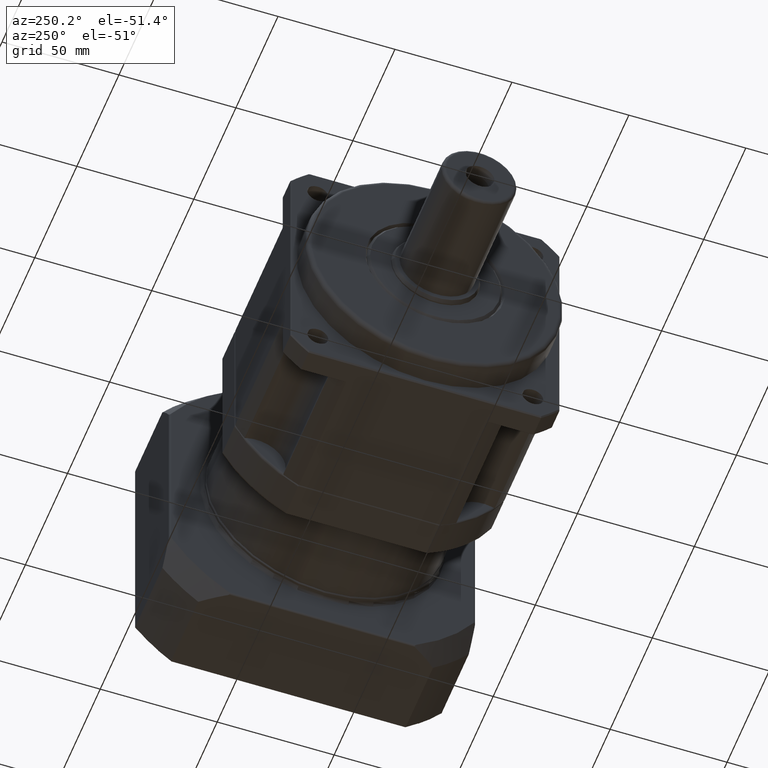
[diagram: clean part render]
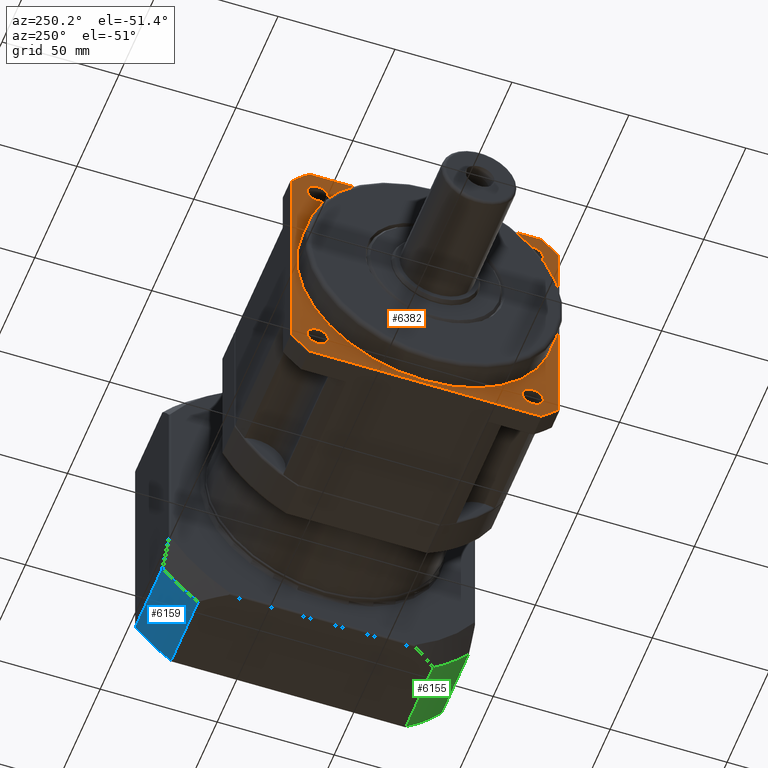
[diagram: same view with three faces highlighted in distinct colors, each labeled with its STEP entity id]
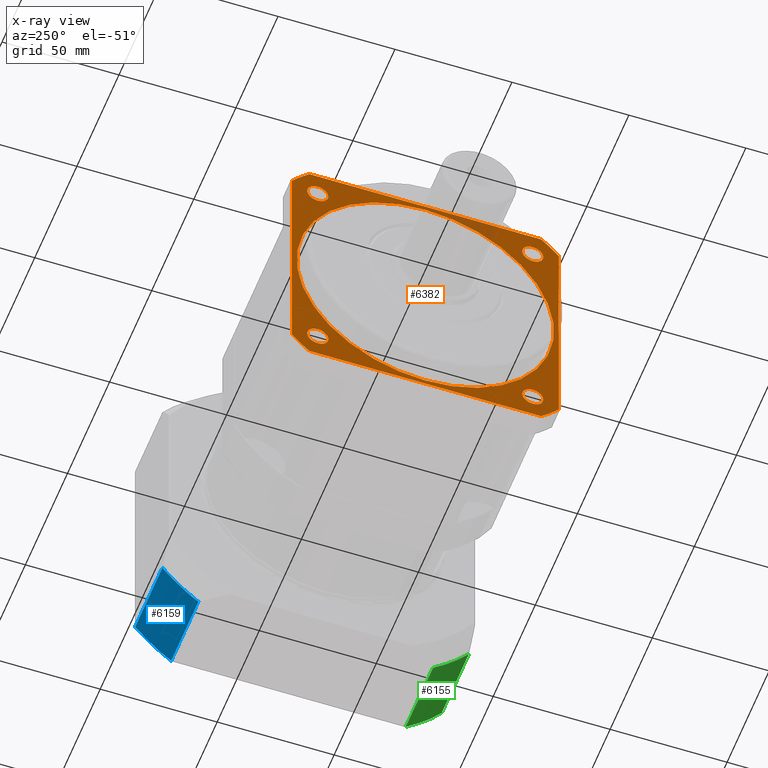
[diagram: x-ray of the same camera — body ghosted, the three highlighted faces saturated]
A machine part, auxiliary view with three faces highlighted in distinct colors.
The next image is the same camera in x-ray (body ghosted, the three faces saturated) — at least one of them is partly hidden behind the body in this view.
Their STEP definitions:

[orange] entity #6382 — the highlighted planar face has unit normal (-1, -0, 0).
#319=LINE('',#10964,#626);
#321=LINE('',#10987,#628);
#323=LINE('',#11005,#630);
#326=LINE('',#11025,#633);
#626=VECTOR('',#8496,99.0201999594022);
#628=VECTOR('',#8506,99.0201999594023);
#630=VECTOR('',#8516,99.0201999594022);
#633=VECTOR('',#8527,99.0201999594022);
#1020=PLANE('',#7074);
#1226=FACE_BOUND('',#2149,.T.);
#1227=FACE_BOUND('',#2150,.T.);
#1228=FACE_BOUND('',#2151,.T.);
#1229=FACE_BOUND('',#2152,.T.);
#1230=FACE_BOUND('',#2153,.T.);
#1580=FACE_OUTER_BOUND('',#2148,.T.);
#2148=EDGE_LOOP('',(#5052,#5053,#5054,#5055,#5056,#5057,#5058,#5059));
#2149=EDGE_LOOP('',(#5060));
#2150=EDGE_LOOP('',(#5061));
#2151=EDGE_LOOP('',(#5062));
#2152=EDGE_LOOP('',(#5063));
#2153=EDGE_LOOP('',(#5064));
#2584=CIRCLE('',#7004,55.);
#2609=CIRCLE('',#7056,75.5);
#2611=CIRCLE('',#7060,75.5);
#2614=CIRCLE('',#7065,75.5);
#2616=CIRCLE('',#7069,75.5);
#2617=CIRCLE('',#7075,4.5);
#2618=CIRCLE('',#7076,4.5);
#2619=CIRCLE('',#7077,4.5);
#2620=CIRCLE('',#7078,4.5);
#3055=VERTEX_POINT('',#10818);
#3100=VERTEX_POINT('',#10962);
#3101=VERTEX_POINT('',#10963);
#3104=VERTEX_POINT('',#10977);
#3106=VERTEX_POINT('',#10986);
#3108=VERTEX_POINT('',#10995);
#3110=VERTEX_POINT('',#11004);
#3113=VERTEX_POINT('',#11015);
#3115=VERTEX_POINT('',#11024);
#3116=VERTEX_POINT('',#11047);
#3117=VERTEX_POINT('',#11049);
#3118=VERTEX_POINT('',#11051);
#3119=VERTEX_POINT('',#11053);
#3735=EDGE_CURVE('',#3055,#3055,#2584,.T.);
#3792=EDGE_CURVE('',#3100,#3101,#319,.T.);
#3796=EDGE_CURVE('',#3101,#3104,#2609,.T.);
#3799=EDGE_CURVE('',#3104,#3106,#321,.T.);
#3802=EDGE_CURVE('',#3106,#3108,#2611,.T.);
#3805=EDGE_CURVE('',#3108,#3110,#323,.T.);
#3809=EDGE_CURVE('',#3110,#3113,#2614,.T.);
#3812=EDGE_CURVE('',#3113,#3115,#326,.T.);
#3815=EDGE_CURVE('',#3115,#3100,#2616,.T.);
#3825=EDGE_CURVE('',#3116,#3116,#2617,.T.);
#3826=EDGE_CURVE('',#3117,#3117,#2618,.T.);
#3827=EDGE_CURVE('',#3118,#3118,#2619,.T.);
#3828=EDGE_CURVE('',#3119,#3119,#2620,.T.);
#5052=ORIENTED_EDGE('',*,*,#3792,.F.);
#5053=ORIENTED_EDGE('',*,*,#3815,.F.);
#5054=ORIENTED_EDGE('',*,*,#3812,.F.);
#5055=ORIENTED_EDGE('',*,*,#3809,.F.);
#5056=ORIENTED_EDGE('',*,*,#3805,.F.);
#5057=ORIENTED_EDGE('',*,*,#3802,.F.);
#5058=ORIENTED_EDGE('',*,*,#3799,.F.);
#5059=ORIENTED_EDGE('',*,*,#3796,.F.);
#5060=ORIENTED_EDGE('',*,*,#3735,.T.);
#5061=ORIENTED_EDGE('',*,*,#3825,.T.);
#5062=ORIENTED_EDGE('',*,*,#3826,.T.);
#5063=ORIENTED_EDGE('',*,*,#3827,.T.);
#5064=ORIENTED_EDGE('',*,*,#3828,.T.);
#6382=ADVANCED_FACE('',(#1580,#1226,#1227,#1228,#1229,#1230),#1020,.T.);
#7004=AXIS2_PLACEMENT_3D('',#10819,#8378,#8379);
#7056=AXIS2_PLACEMENT_3D('',#10978,#8500,#8501);
#7060=AXIS2_PLACEMENT_3D('',#10996,#8510,#8511);
#7065=AXIS2_PLACEMENT_3D('',#11016,#8522,#8523);
#7069=AXIS2_PLACEMENT_3D('',#11032,#8532,#8533);
#7074=AXIS2_PLACEMENT_3D('',#11046,#8551,#8552);
#7075=AXIS2_PLACEMENT_3D('',#11048,#8553,#8554);
#7076=AXIS2_PLACEMENT_3D('',#11050,#8555,#8556);
#7077=AXIS2_PLACEMENT_3D('',#11052,#8557,#8558);
#7078=AXIS2_PLACEMENT_3D('',#11054,#8559,#8560);
#8378=DIRECTION('center_axis',(1.,6.1062266354384E-16,-1.15585299033076E-15));
#8379=DIRECTION('ref_axis',(-1.15585299033076E-15,-5.34294830600751E-16,
-1.));
#8496=DIRECTION('',(-6.1062266354384E-16,1.,-3.02596112418109E-16));
#8500=DIRECTION('center_axis',(1.,6.1062266354384E-16,-1.15585299033076E-15));
#8501=DIRECTION('ref_axis',(-1.15585299033076E-15,-5.34294830600751E-16,
-1.));
#8506=DIRECTION('',(1.15585299033076E-15,3.7982901847899E-16,1.));
#8510=DIRECTION('center_axis',(1.,6.1062266354384E-16,-1.15585299033076E-15));
#8511=DIRECTION('ref_axis',(1.15585299033076E-15,5.34294830600751E-16,1.));
#8516=DIRECTION('',(6.1062266354384E-16,-1.,4.5706192453987E-16));
#8522=DIRECTION('center_axis',(1.,6.1062266354384E-16,-1.15585299033076E-15));
#8523=DIRECTION('ref_axis',(1.15585299033076E-15,5.34294830600751E-16,1.));
#8527=DIRECTION('',(-1.15585299033076E-15,-5.34294830600751E-16,-1.));
#8532=DIRECTION('center_axis',(1.,6.1062266354384E-16,-1.15585299033076E-15));
#8533=DIRECTION('ref_axis',(-1.15585299033076E-15,-5.34294830600751E-16,
-1.));
#8551=DIRECTION('center_axis',(-1.,-6.1062266354384E-16,1.15585299033076E-15));
#8552=DIRECTION('ref_axis',(1.4210854715202E-15,0.,1.));
#8553=DIRECTION('center_axis',(1.,6.1062266354384E-16,-1.15585299033076E-15));
#8554=DIRECTION('ref_axis',(-1.15585299033076E-15,-5.34294830600751E-16,
-1.));
#8555=DIRECTION('center_axis',(1.,6.1062266354384E-16,-1.15585299033076E-15));
#8556=DIRECTION('ref_axis',(-6.1062266354384E-16,1.,-5.95527170558118E-16));
#8557=DIRECTION('center_axis',(1.,6.1062266354384E-16,-1.15585299033076E-15));
#8558=DIRECTION('ref_axis',(1.15585299033076E-15,6.56759510515486E-16,1.));
#8559=DIRECTION('center_axis',(1.,6.1062266354384E-16,-1.15585299033076E-15));
#8560=DIRECTION('ref_axis',(6.1062266354384E-16,-1.,7.17991850472853E-16));
#10818=CARTESIAN_POINT('',(-82.5513956068893,-123.244525766391,-49.9535040948));
#10819=CARTESIAN_POINT('Origin',(-82.5513956068893,-123.244525766391,-104.9535040948));
#10962=CARTESIAN_POINT('',(-82.5513956068894,-172.754625746092,-161.9535040948));
#10963=CARTESIAN_POINT('',(-82.5513956068894,-73.7344257866899,-161.9535040948));
#10964=CARTESIAN_POINT('',(-82.5513956068894,-94.4945257663911,-161.9535040948));
#10977=CARTESIAN_POINT('',(-82.5513956068894,-66.2445257663911,-154.463604074501));
#10978=CARTESIAN_POINT('Origin',(-82.5513956068893,-123.244525766391,-104.9535040948));
#10986=CARTESIAN_POINT('',(-82.5513956068893,-66.244525766391,-55.4434041150989));
#10987=CARTESIAN_POINT('',(-82.5513956068893,-66.244525766391,-76.2035040948));
#10995=CARTESIAN_POINT('',(-82.5513956068893,-73.7344257866899,-47.9535040948));
#10996=CARTESIAN_POINT('Origin',(-82.5513956068893,-123.244525766391,-104.9535040948));
#11004=CARTESIAN_POINT('',(-82.5513956068892,-172.754625746092,-47.9535040947999));
#11005=CARTESIAN_POINT('',(-82.5513956068893,-151.994525766391,-47.9535040948));
#11015=CARTESIAN_POINT('',(-82.5513956068892,-180.244525766391,-55.4434041150988));
#11016=CARTESIAN_POINT('Origin',(-82.5513956068893,-123.244525766391,-104.9535040948));
#11024=CARTESIAN_POINT('',(-82.5513956068893,-180.244525766391,-154.463604074501));
#11025=CARTESIAN_POINT('',(-82.5513956068893,-180.244525766391,-133.7035040948));
#11032=CARTESIAN_POINT('Origin',(-82.5513956068893,-123.244525766391,-104.9535040948));
#11046=CARTESIAN_POINT('Origin',(-82.5513956068893,-123.244525766391,-104.9535040948));
#11047=CARTESIAN_POINT('',(-82.5513956068893,-169.206466543517,-54.4915633176744));
#11048=CARTESIAN_POINT('Origin',(-82.5513956068893,-169.206466543517,-58.9915633176744));
#11049=CARTESIAN_POINT('',(-82.5513956068894,-173.706466543517,-150.915444871926));
#11050=CARTESIAN_POINT('Origin',(-82.5513956068894,-169.206466543517,-150.915444871926));
#11051=CARTESIAN_POINT('',(-82.5513956068894,-77.2825849892655,-155.415444871926));
#11052=CARTESIAN_POINT('Origin',(-82.5513956068894,-77.2825849892655,-150.915444871926));
#11053=CARTESIAN_POINT('',(-82.5513956068893,-72.7825849892654,-58.9915633176744));
#11054=CARTESIAN_POINT('Origin',(-82.5513956068893,-77.2825849892654,-58.9915633176744));

[blue] entity #6159 — the highlighted cylindrical surface (partial cylindrical patch) has radius 82.5 mm, axis along (-1, -0, 0).
#164=LINE('',#9595,#471);
#166=LINE('',#9599,#473);
#471=VECTOR('',#7591,32.2644831780048);
#473=VECTOR('',#7595,32.2644831780048);
#1357=FACE_OUTER_BOUND('',#1821,.T.);
#1821=EDGE_LOOP('',(#4222,#4223,#4224,#4225));
#2439=CIRCLE('',#6658,82.5);
#2454=CIRCLE('',#6681,82.5);
#2791=VERTEX_POINT('',#9412);
#2792=VERTEX_POINT('',#9414);
#2812=VERTEX_POINT('',#9594);
#2813=VERTEX_POINT('',#9598);
#3366=EDGE_CURVE('',#2792,#2791,#2439,.T.);
#3393=EDGE_CURVE('',#2792,#2812,#164,.T.);
#3395=EDGE_CURVE('',#2813,#2791,#166,.T.);
#3396=EDGE_CURVE('',#2812,#2813,#2454,.T.);
#4222=ORIENTED_EDGE('',*,*,#3366,.T.);
#4223=ORIENTED_EDGE('',*,*,#3395,.F.);
#4224=ORIENTED_EDGE('',*,*,#3396,.F.);
#4225=ORIENTED_EDGE('',*,*,#3393,.F.);
#5695=CYLINDRICAL_SURFACE('',#6680,82.5);
#6159=ADVANCED_FACE('',(#1357),#5695,.T.);
#6658=AXIS2_PLACEMENT_3D('',#9415,#7542,#7543);
#6680=AXIS2_PLACEMENT_3D('',#9597,#7593,#7594);
#6681=AXIS2_PLACEMENT_3D('',#9600,#7596,#7597);
#7542=DIRECTION('center_axis',(1.,4.72771356570088E-16,-6.52809391270747E-16));
#7543=DIRECTION('ref_axis',(-6.52809391270748E-16,4.14945855453653E-15,
-1.));
#7591=DIRECTION('',(1.,4.72771356570088E-16,-6.52809391270747E-16));
#7593=DIRECTION('center_axis',(-1.,-4.72771356570088E-16,6.52809391270747E-16));
#7594=DIRECTION('ref_axis',(-6.52809391270748E-16,4.14945855453653E-15,
-1.));
#7595=DIRECTION('',(-1.,-4.72771356570088E-16,6.52809391270747E-16));
#7596=DIRECTION('center_axis',(1.,4.72771356570088E-16,-6.52809391270747E-16));
#7597=DIRECTION('ref_axis',(-7.95905779571279E-16,0.70710678118655,-0.707106781186545));
#9412=CARTESIAN_POINT('',(47.6841212151059,-57.7445257663908,-155.113248910738));
#9414=CARTESIAN_POINT('',(47.6841212151059,-73.084780950453,-170.4535040948));
#9415=CARTESIAN_POINT('Origin',(47.6841212151059,-123.244525766391,-104.9535040948));
#9594=CARTESIAN_POINT('',(79.9486043931107,-73.0847809504529,-170.4535040948));
#9595=CARTESIAN_POINT('',(80.4486043931107,-73.0847809504529,-170.4535040948));
#9597=CARTESIAN_POINT('Origin',(80.4486043931107,-123.244525766391,-104.9535040948));
#9598=CARTESIAN_POINT('',(79.9486043931107,-57.7445257663908,-155.113248910738));
#9599=CARTESIAN_POINT('',(80.4486043931107,-57.7445257663908,-155.113248910738));
#9600=CARTESIAN_POINT('Origin',(79.9486043931107,-123.244525766391,-104.9535040948));

[green] entity #6155 — the highlighted cylindrical surface (partial cylindrical patch) has radius 82.5 mm, axis along (-1, -0, 0).
#159=LINE('',#9580,#466);
#160=LINE('',#9583,#467);
#466=VECTOR('',#7574,32.2644831780048);
#467=VECTOR('',#7577,32.2644831780048);
#1353=FACE_OUTER_BOUND('',#1817,.T.);
#1817=EDGE_LOOP('',(#4204,#4205,#4206,#4207));
#2449=CIRCLE('',#6671,82.5);
#2451=CIRCLE('',#6674,82.5);
#2805=VERTEX_POINT('',#9553);
#2806=VERTEX_POINT('',#9555);
#2808=VERTEX_POINT('',#9579);
#2809=VERTEX_POINT('',#9581);
#3382=EDGE_CURVE('',#2806,#2805,#2449,.T.);
#3385=EDGE_CURVE('',#2808,#2805,#159,.T.);
#3386=EDGE_CURVE('',#2809,#2808,#2451,.T.);
#3387=EDGE_CURVE('',#2806,#2809,#160,.T.);
#4204=ORIENTED_EDGE('',*,*,#3382,.T.);
#4205=ORIENTED_EDGE('',*,*,#3385,.F.);
#4206=ORIENTED_EDGE('',*,*,#3386,.F.);
#4207=ORIENTED_EDGE('',*,*,#3387,.F.);
#5692=CYLINDRICAL_SURFACE('',#6673,82.5);
#6155=ADVANCED_FACE('',(#1353),#5692,.T.);
#6671=AXIS2_PLACEMENT_3D('',#9556,#7568,#7569);
#6673=AXIS2_PLACEMENT_3D('',#9578,#7572,#7573);
#6674=AXIS2_PLACEMENT_3D('',#9582,#7575,#7576);
#7568=DIRECTION('center_axis',(1.,4.72771356570088E-16,-6.52809391270747E-16));
#7569=DIRECTION('ref_axis',(-6.52809391270748E-16,4.14945855453653E-15,
-1.));
#7572=DIRECTION('center_axis',(-1.,-4.72771356570088E-16,6.52809391270747E-16));
#7573=DIRECTION('ref_axis',(-6.52809391270748E-16,4.14945855453653E-15,
-1.));
#7574=DIRECTION('',(-1.,-4.72771356570088E-16,6.52809391270747E-16));
#7575=DIRECTION('center_axis',(1.,4.72771356570088E-16,-6.52809391270747E-16));
#7576=DIRECTION('ref_axis',(-1.27306115208338E-16,-0.707106781186544,-0.707106781186551));
#7577=DIRECTION('',(1.,4.72771356570088E-16,-6.52809391270747E-16));
#9553=CARTESIAN_POINT('',(47.6841212151059,-173.404270582329,-170.4535040948));
#9555=CARTESIAN_POINT('',(47.6841212151059,-188.744525766391,-155.113248910738));
#9556=CARTESIAN_POINT('Origin',(47.6841212151059,-123.244525766391,-104.9535040948));
#9578=CARTESIAN_POINT('Origin',(80.4486043931107,-123.244525766391,-104.9535040948));
#9579=CARTESIAN_POINT('',(79.9486043931107,-173.404270582328,-170.4535040948));
#9580=CARTESIAN_POINT('',(80.4486043931107,-173.404270582328,-170.4535040948));
#9581=CARTESIAN_POINT('',(79.9486043931107,-188.744525766391,-155.113248910738));
#9582=CARTESIAN_POINT('Origin',(79.9486043931107,-123.244525766391,-104.9535040948));
#9583=CARTESIAN_POINT('',(80.4486043931107,-188.744525766391,-155.113248910738));